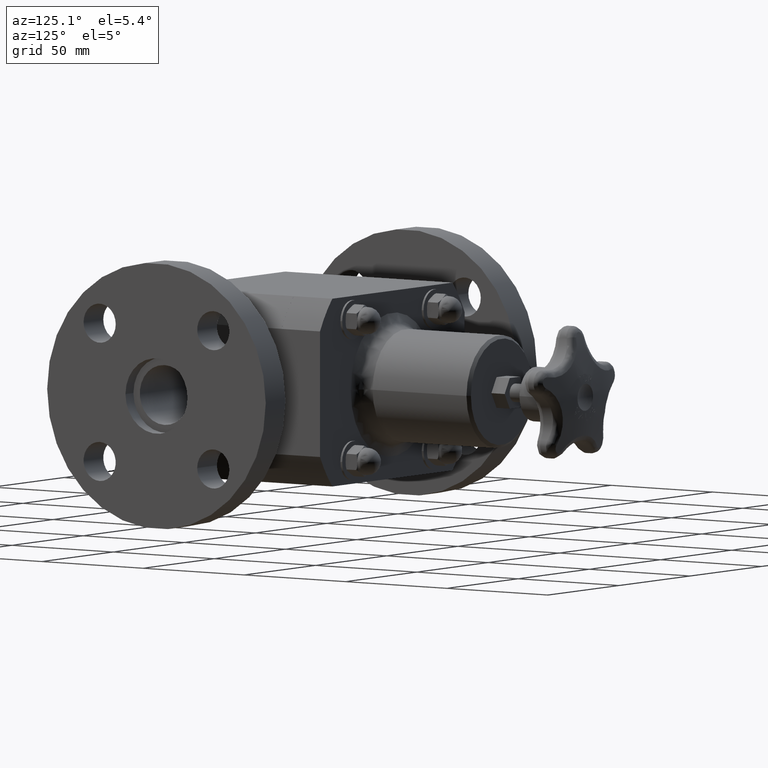
[diagram: clean part render]
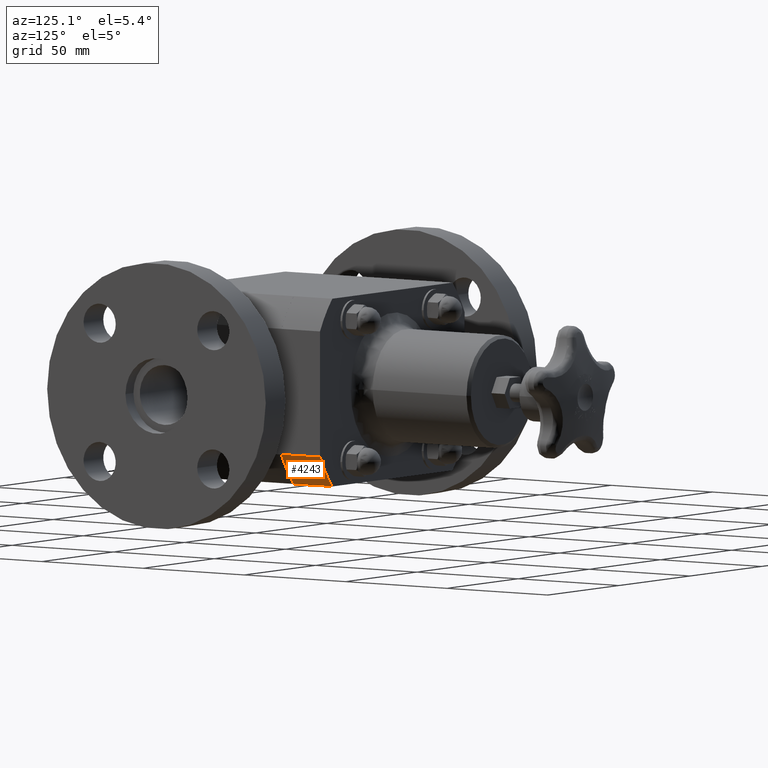
[diagram: same view with one face highlighted and labeled with its STEP entity id]
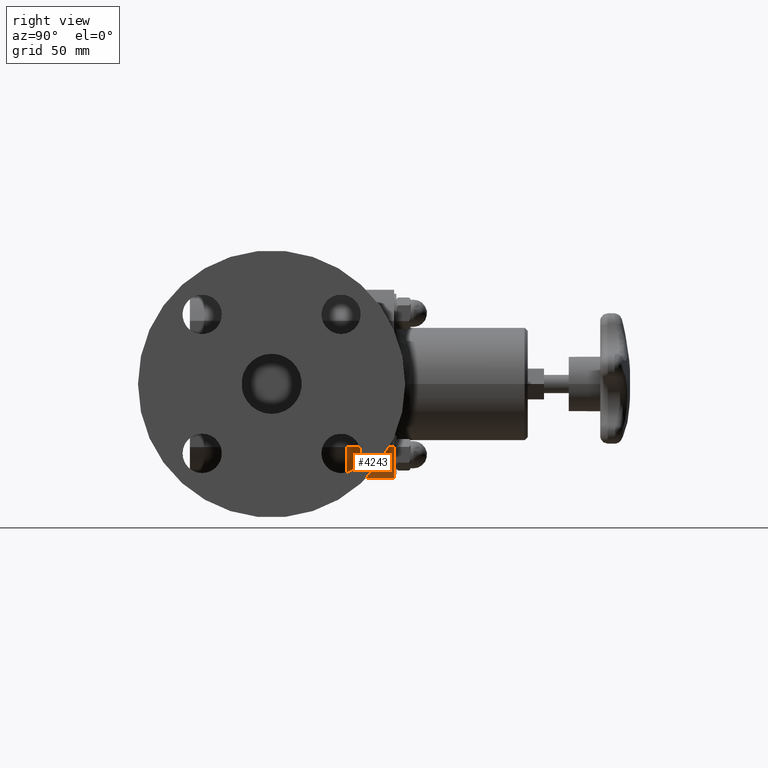
[diagram: same view with one face highlighted and labeled with its STEP entity id]
A machine part, auxiliary view. The second image highlights one B-rep face of the part: STEP entity #4243.
A second angle (right view) of the same face is appended — the face is thin or edge-on in the first view.
In plain terms, the highlighted cylindrical surface (partial cylindrical patch) has radius 56.8325 mm, axis along (0, -1, 0).
Its self-contained STEP definition (entity closure, byte-faithful):
#4202=CARTESIAN_POINT('',(6.993531E-016,2.875000000000000,5.463696E-016));
#4203=DIRECTION('',(5.780896E-045,-1.0,1.900469E-060));
#4204=DIRECTION('',(1.0,0.0,0.0));
#4205=AXIS2_PLACEMENT_3D('',#4202,#4203,#4204);
#4206=CYLINDRICAL_SURFACE('',#4205,2.237500000000000);
#4207=CARTESIAN_POINT('',(2.000000000000000,2.500000000000000,-1.003198011361665));
#4208=VERTEX_POINT('',#4207);
#4209=CARTESIAN_POINT('',(2.000000000000000,3.250000000000000,-1.003198011361665));
#4210=VERTEX_POINT('',#4209);
#4211=CARTESIAN_POINT('',(2.000000000000000,2.500000000000000,-1.003198011361665));
#4212=DIRECTION('',(0.0,1.0,0.0));
#4213=VECTOR('',#4212,0.750000000000000);
#4214=LINE('',#4211,#4213);
#4215=EDGE_CURVE('',#4208,#4210,#4214,.T.);
#4216=ORIENTED_EDGE('',*,*,#4215,.F.);
#4217=CARTESIAN_POINT('',(1.660242828624778,2.500000000000000,-1.499999999999999));
#4218=VERTEX_POINT('',#4217);
#4219=CARTESIAN_POINT('',(6.993531E-016,2.500000000000000,5.463696E-016));
#4220=DIRECTION('',(0.0,-1.0,0.0));
#4221=DIRECTION('',(1.0,0.0,0.0));
#4222=AXIS2_PLACEMENT_3D('',#4219,#4220,#4221);
#4223=CIRCLE('',#4222,2.237500000000000);
#4224=EDGE_CURVE('',#4218,#4208,#4223,.T.);
#4225=ORIENTED_EDGE('',*,*,#4224,.F.);
#4226=CARTESIAN_POINT('',(1.660242828624778,3.250000000000000,-1.499999999999999));
#4227=VERTEX_POINT('',#4226);
#4228=CARTESIAN_POINT('',(1.660242828624778,3.250000000000000,-1.499999999999999));
#4229=DIRECTION('',(0.0,-1.0,0.0));
#4230=VECTOR('',#4229,0.750000000000000);
#4231=LINE('',#4228,#4230);
#4232=EDGE_CURVE('',#4227,#4218,#4231,.T.);
#4233=ORIENTED_EDGE('',*,*,#4232,.F.);
#4234=CARTESIAN_POINT('',(6.993531E-016,3.250000000000000,5.463696E-016));
#4235=DIRECTION('',(0.0,-1.0,0.0));
#4236=DIRECTION('',(1.0,0.0,0.0));
#4237=AXIS2_PLACEMENT_3D('',#4234,#4235,#4236);
#4238=CIRCLE('',#4237,2.237500000000000);
#4239=EDGE_CURVE('',#4227,#4210,#4238,.T.);
#4240=ORIENTED_EDGE('',*,*,#4239,.T.);
#4241=EDGE_LOOP('',(#4216,#4225,#4233,#4240));
#4242=FACE_OUTER_BOUND('',#4241,.T.);
#4243=ADVANCED_FACE('',(#4242),#4206,.T.);